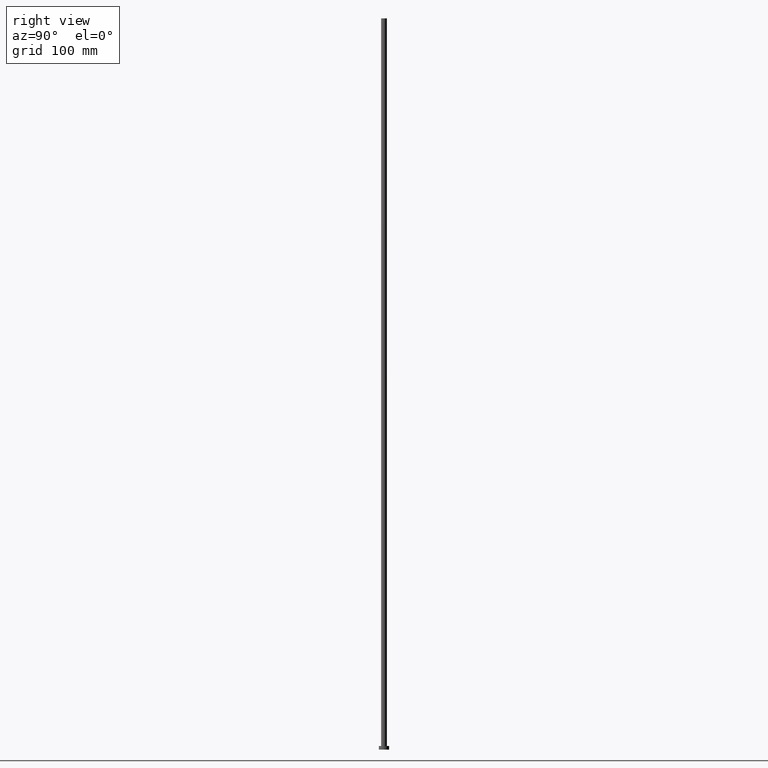
[diagram: clean part render]
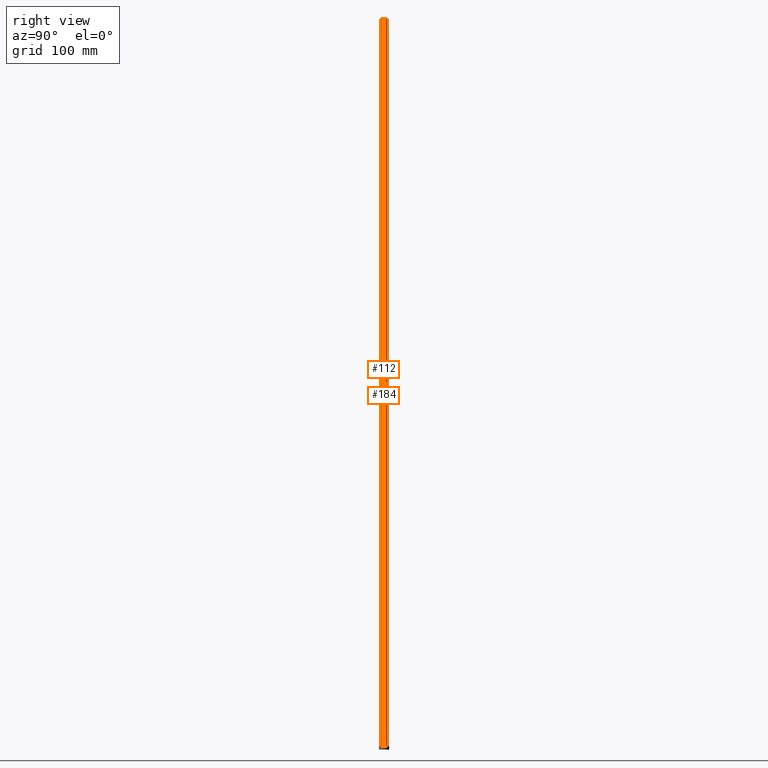
[diagram: same view with one multi-face feature highlighted, each face labeled with its STEP entity id]
A machine part, right view. The highlighted faces form ONE feature: a constant-radius fillet chain: 2 tangent blend faces with common blend radius 4 mm. The faces share edges in the B-rep.
Their STEP definitions:
[1] entity #112 (Cylinder):
#4 = CARTESIAN_POINT ( 'NONE',  ( -4.000000000000000000, 0.000000000000000000, 1000.000000000000000 ) ) ;
#12 = EDGE_LOOP ( 'NONE', ( #79, #113, #206, #52 ) ) ;
#14 = EDGE_CURVE ( 'NONE', #143, #208, #157, .T. ) ;
#18 = CARTESIAN_POINT ( 'NONE',  ( 4.000000000000000000, 4.898587196589411843E-16, 1000.000000000000000 ) ) ;
#27 = DIRECTION ( 'NONE',  ( 0.000000000000000000, 0.000000000000000000, 1.000000000000000000 ) ) ;
#37 = CYLINDRICAL_SURFACE ( 'NONE', #234, 4.000000000000000000 ) ;
#39 = VECTOR ( 'NONE', #106, 1000.000000000000000 ) ;
#47 = VERTEX_POINT ( 'NONE', #4 ) ;
#49 = CARTESIAN_POINT ( 'NONE',  ( 0.000000000000000000, 0.000000000000000000, 5.000000000000000000 ) ) ;
#50 = EDGE_CURVE ( 'NONE', #47, #143, #63, .T. ) ;
#52 = ORIENTED_EDGE ( 'NONE', *, *, #235, .T. ) ;
#53 = CARTESIAN_POINT ( 'NONE',  ( 0.000000000000000000, 0.000000000000000000, 1000.000000000000000 ) ) ;
#63 = CIRCLE ( 'NONE', #153, 4.000000000000000000 ) ;
#64 = AXIS2_PLACEMENT_3D ( 'NONE', #49, #27, #244 ) ;
#79 = ORIENTED_EDGE ( 'NONE', *, *, #14, .F. ) ;
#93 = DIRECTION ( 'NONE',  ( 0.000000000000000000, 0.000000000000000000, 1.000000000000000000 ) ) ;
#95 = DIRECTION ( 'NONE',  ( -1.000000000000000000, 0.000000000000000000, 0.000000000000000000 ) ) ;
#97 = VECTOR ( 'NONE', #196, 1000.000000000000000 ) ;
#106 = DIRECTION ( 'NONE',  ( -0.000000000000000000, -0.000000000000000000, -1.000000000000000000 ) ) ;
#112 = ADVANCED_FACE ( 'NONE', ( #197 ), #37, .T. ) ;
#113 = ORIENTED_EDGE ( 'NONE', *, *, #50, .F. ) ;
#118 = CARTESIAN_POINT ( 'NONE',  ( 4.000000000000000000, 4.898587196589411843E-16, 5.000000000000000000 ) ) ;
#133 = DIRECTION ( 'NONE',  ( -0.000000000000000000, -0.000000000000000000, -1.000000000000000000 ) ) ;
#140 = CIRCLE ( 'NONE', #64, 4.000000000000000000 ) ;
#143 = VERTEX_POINT ( 'NONE', #18 ) ;
#147 = VERTEX_POINT ( 'NONE', #173 ) ;
#153 = AXIS2_PLACEMENT_3D ( 'NONE', #53, #93, #175 ) ;
#157 = LINE ( 'NONE', #223, #97 ) ;
#159 = LINE ( 'NONE', #164, #39 ) ;
#164 = CARTESIAN_POINT ( 'NONE',  ( -4.000000000000000000, 0.000000000000000000, 1000.000000000000000 ) ) ;
#173 = CARTESIAN_POINT ( 'NONE',  ( -4.000000000000000000, 0.000000000000000000, 5.000000000000000000 ) ) ;
#175 = DIRECTION ( 'NONE',  ( 1.000000000000000000, 0.000000000000000000, 0.000000000000000000 ) ) ;
#196 = DIRECTION ( 'NONE',  ( -0.000000000000000000, -0.000000000000000000, -1.000000000000000000 ) ) ;
#197 = FACE_OUTER_BOUND ( 'NONE', #12, .T. ) ;
#206 = ORIENTED_EDGE ( 'NONE', *, *, #213, .T. ) ;
#208 = VERTEX_POINT ( 'NONE', #118 ) ;
#213 = EDGE_CURVE ( 'NONE', #47, #147, #159, .T. ) ;
#223 = CARTESIAN_POINT ( 'NONE',  ( 4.000000000000000000, 4.898587196589411843E-16, 1000.000000000000000 ) ) ;
#234 = AXIS2_PLACEMENT_3D ( 'NONE', #241, #133, #95 ) ;
#235 = EDGE_CURVE ( 'NONE', #147, #208, #140, .T. ) ;
#241 = CARTESIAN_POINT ( 'NONE',  ( 0.000000000000000000, 0.000000000000000000, 1000.000000000000000 ) ) ;
#244 = DIRECTION ( 'NONE',  ( 1.000000000000000000, 0.000000000000000000, 0.000000000000000000 ) ) ;
[2] entity #184 (Cylinder):
#4 = CARTESIAN_POINT ( 'NONE',  ( -4.000000000000000000, 0.000000000000000000, 1000.000000000000000 ) ) ;
#14 = EDGE_CURVE ( 'NONE', #143, #208, #157, .T. ) ;
#18 = CARTESIAN_POINT ( 'NONE',  ( 4.000000000000000000, 4.898587196589411843E-16, 1000.000000000000000 ) ) ;
#22 = CARTESIAN_POINT ( 'NONE',  ( 0.000000000000000000, 0.000000000000000000, 1000.000000000000000 ) ) ;
#23 = DIRECTION ( 'NONE',  ( 0.000000000000000000, 0.000000000000000000, 1.000000000000000000 ) ) ;
#32 = ORIENTED_EDGE ( 'NONE', *, *, #14, .T. ) ;
#39 = VECTOR ( 'NONE', #106, 1000.000000000000000 ) ;
#41 = FACE_OUTER_BOUND ( 'NONE', #82, .T. ) ;
#47 = VERTEX_POINT ( 'NONE', #4 ) ;
#57 = DIRECTION ( 'NONE',  ( -1.000000000000000000, 0.000000000000000000, 0.000000000000000000 ) ) ;
#67 = EDGE_CURVE ( 'NONE', #208, #147, #193, .T. ) ;
#70 = DIRECTION ( 'NONE',  ( 1.000000000000000000, 0.000000000000000000, 0.000000000000000000 ) ) ;
#74 = CARTESIAN_POINT ( 'NONE',  ( 0.000000000000000000, 0.000000000000000000, 1000.000000000000000 ) ) ;
#82 = EDGE_LOOP ( 'NONE', ( #233, #32, #226, #187 ) ) ;
#97 = VECTOR ( 'NONE', #196, 1000.000000000000000 ) ;
#106 = DIRECTION ( 'NONE',  ( -0.000000000000000000, -0.000000000000000000, -1.000000000000000000 ) ) ;
#118 = CARTESIAN_POINT ( 'NONE',  ( 4.000000000000000000, 4.898587196589411843E-16, 5.000000000000000000 ) ) ;
#128 = EDGE_CURVE ( 'NONE', #143, #47, #149, .T. ) ;
#129 = AXIS2_PLACEMENT_3D ( 'NONE', #132, #218, #70 ) ;
#132 = CARTESIAN_POINT ( 'NONE',  ( 0.000000000000000000, 0.000000000000000000, 5.000000000000000000 ) ) ;
#143 = VERTEX_POINT ( 'NONE', #18 ) ;
#147 = VERTEX_POINT ( 'NONE', #173 ) ;
#149 = CIRCLE ( 'NONE', #190, 4.000000000000000000 ) ;
#157 = LINE ( 'NONE', #223, #97 ) ;
#159 = LINE ( 'NONE', #164, #39 ) ;
#164 = CARTESIAN_POINT ( 'NONE',  ( -4.000000000000000000, 0.000000000000000000, 1000.000000000000000 ) ) ;
#169 = AXIS2_PLACEMENT_3D ( 'NONE', #74, #240, #57 ) ;
#173 = CARTESIAN_POINT ( 'NONE',  ( -4.000000000000000000, 0.000000000000000000, 5.000000000000000000 ) ) ;
#177 = DIRECTION ( 'NONE',  ( 1.000000000000000000, 0.000000000000000000, 0.000000000000000000 ) ) ;
#184 = ADVANCED_FACE ( 'NONE', ( #41 ), #254, .T. ) ;
#187 = ORIENTED_EDGE ( 'NONE', *, *, #213, .F. ) ;
#190 = AXIS2_PLACEMENT_3D ( 'NONE', #22, #23, #177 ) ;
#193 = CIRCLE ( 'NONE', #129, 4.000000000000000000 ) ;
#196 = DIRECTION ( 'NONE',  ( -0.000000000000000000, -0.000000000000000000, -1.000000000000000000 ) ) ;
#208 = VERTEX_POINT ( 'NONE', #118 ) ;
#213 = EDGE_CURVE ( 'NONE', #47, #147, #159, .T. ) ;
#218 = DIRECTION ( 'NONE',  ( 0.000000000000000000, 0.000000000000000000, 1.000000000000000000 ) ) ;
#223 = CARTESIAN_POINT ( 'NONE',  ( 4.000000000000000000, 4.898587196589411843E-16, 1000.000000000000000 ) ) ;
#226 = ORIENTED_EDGE ( 'NONE', *, *, #67, .T. ) ;
#233 = ORIENTED_EDGE ( 'NONE', *, *, #128, .F. ) ;
#240 = DIRECTION ( 'NONE',  ( -0.000000000000000000, -0.000000000000000000, -1.000000000000000000 ) ) ;
#254 = CYLINDRICAL_SURFACE ( 'NONE', #169, 4.000000000000000000 ) ;